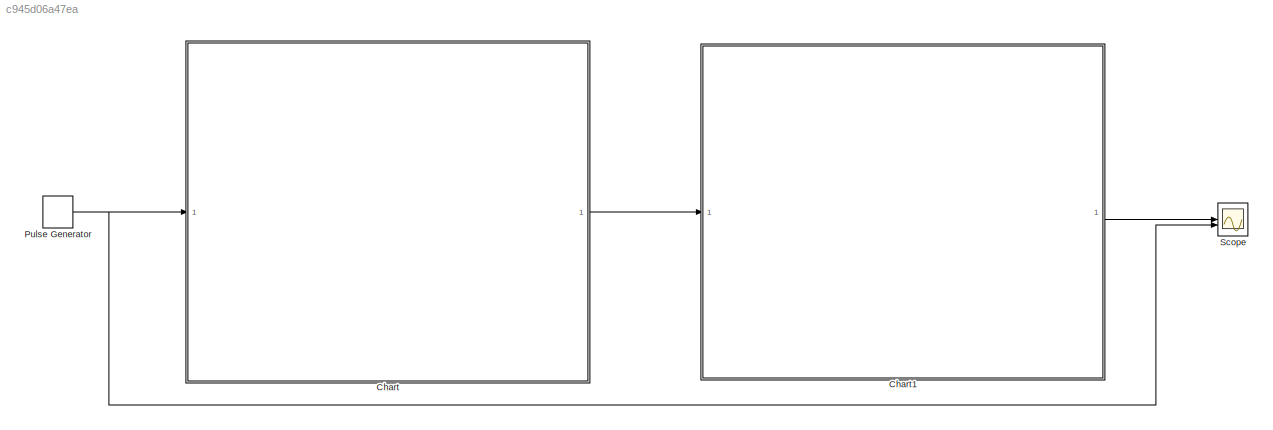
MODEL slx_c945d06a47ea
KIND model
CONFIG AbsTol = auto
CONFIG EnableMultiTasking = off
CONFIG FixedStep = 0.01
CONFIG MaxStep = auto
CONFIG MinStep = auto
CONFIG RelTol = 1e-3
CONFIG SampleTimeConstraint = Unconstrained
CONFIG SolverName = FixedStepAuto
CONFIG StartTime = 0.0
CONFIG StopTime = 2
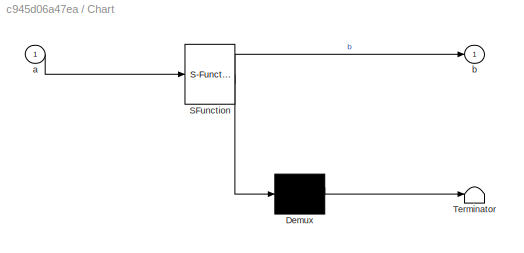
BLOCK [SubSystem] Chart
  ErrorFcn = Stateflow.Translate.translate
  PermitHierarchicalResolution = ExplicitOnly
  SFBlockType = Chart
  TreatAsAtomicUnit = on
BLOCK [Demux] Chart/ Demux 
  Outputs = 1
BLOCK [S-Function] Chart/ SFunction 
  EnableBusSupport = on
  FunctionName = sf_sfun
  PortCounts = [1 2]
  SFcnIsStateOwnerBlock = off
  SFunctionDeploymentMode = off
  Tag = Stateflow S-Function 3
BLOCK [Terminator] Chart/ Terminator 
BLOCK [Inport] Chart/a
BLOCK [Outport] Chart/b
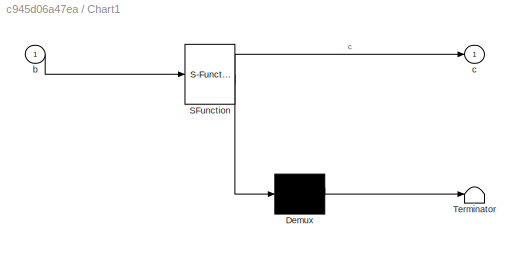
BLOCK [SubSystem] Chart1
  ErrorFcn = Stateflow.Translate.translate
  PermitHierarchicalResolution = ExplicitOnly
  SFBlockType = Chart
  TreatAsAtomicUnit = on
BLOCK [Demux] Chart1/ Demux 
  Outputs = 1
BLOCK [S-Function] Chart1/ SFunction 
  EnableBusSupport = on
  FunctionName = sf_sfun
  PortCounts = [1 2]
  SFcnIsStateOwnerBlock = off
  SFunctionDeploymentMode = off
  Tag = Stateflow S-Function 1
BLOCK [Terminator] Chart1/ Terminator 
BLOCK [Inport] Chart1/b
BLOCK [Outport] Chart1/c
BLOCK [DiscretePulseGenerator] Pulse Generator
  Period = 1
  PhaseDelay = 0.05
  PulseType = Time based
  PulseWidth = 6
BLOCK [Scope] Scope
  Floating = off
  NumInputPorts = 2
  ScopeSpecificationString = Simulink.scopes.TimeScopeBlockCfg('CurrentConfiguration', extmgr.ConfigurationSet(extmgr.Configuration('Core','General UI',true),extmgr.Configuration('Core','Source UI',true),extmgr.Configuration('Sources','WiredSimulink',true),extmgr.Configuration('Visuals','Time Domain',true,'SerializedDisplays',{struct('MinYLimReal','-0.125','MaxYLimReal','1.125','YLabelReal','','MinYLimMag','0.00000','MaxYLimM...<+1447ch>
LINE Chart1:1 -> Scope:1
LINE Chart:1 -> Chart1:1
NET Pulse Generator:1 -> Chart:1, Scope:2
note: NET lines group one-source signal fan-out (src -> all destinations, sorted); 1:1 wires keep LINE
CHART Chart1 states=4 transitions=7
  STATE_LABEL 'S2'
  STATE_LABEL 'X'
  STATE_LABEL 'Y'
  STATE_LABEL 'Z'
  STATE_LABEL '[~b]'
  STATE_LABEL '[~b]{c=0}'
  STATE_LABEL '[b]{c=0}'
  STATE_LABEL '[b]{c=1}'
  STATE_LABEL '[b]'
  STATE_LABEL '[~b]'
  STATE_LABEL 'X'
  STATE_LABEL 'Y'
  STATE_LABEL 'Z'
CHART Chart states=3 transitions=6
  STATE_LABEL 'S1'
  STATE_LABEL 'A'
  STATE_LABEL 'B'
  STATE_LABEL '[~a]{b=0}'
  STATE_LABEL '[~a]{b=0}'
  STATE_LABEL '[a]{b=0}'
  STATE_LABEL '[a]{b=1}'
  STATE_LABEL 'A'
  STATE_LABEL 'B'
CHART  states=0 transitions=0
CHART  states=0 transitions=0
